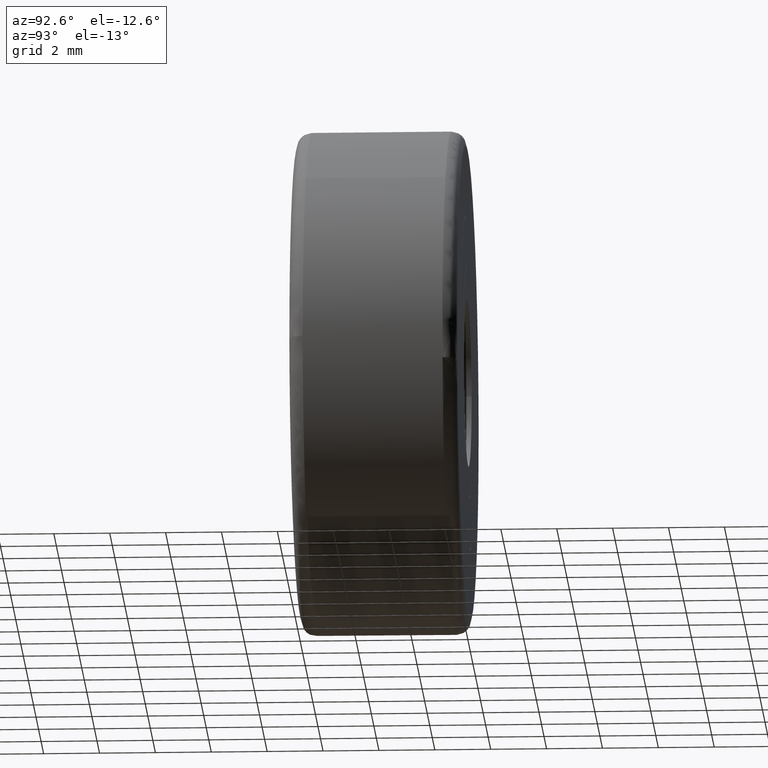
[diagram: clean part render]
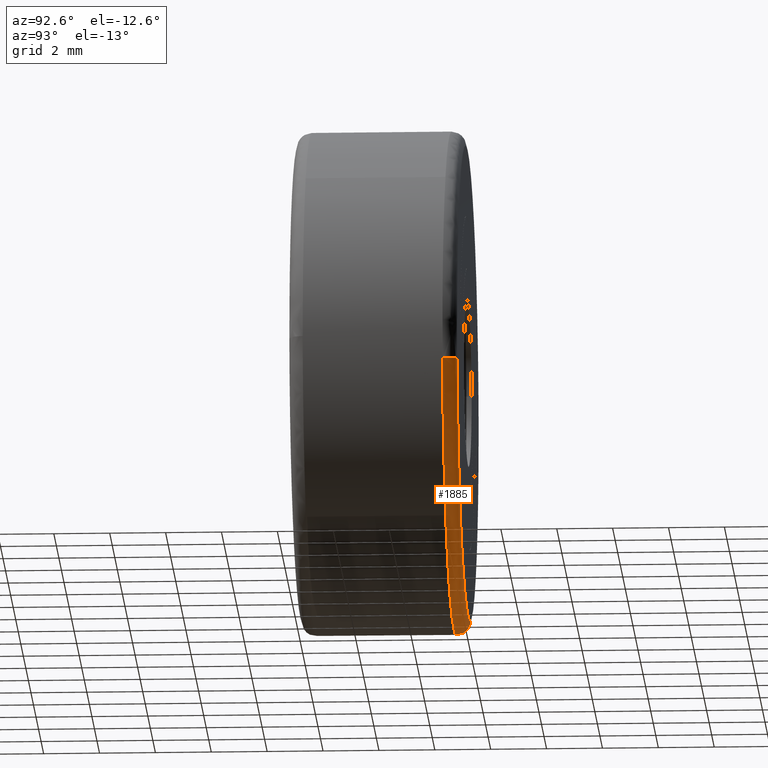
[diagram: same view with one face highlighted and labeled with its STEP entity id]
A machine part, auxiliary view. The second image highlights one B-rep face of the part: STEP entity #1885.
In plain terms, the highlighted face is a freeform B-spline surface patch.
Its self-contained STEP definition (entity closure, byte-faithful):
#1202=CARTESIAN_POINT('',(-9.0,5.500000000060477,4.425539E-016));
#1203=VERTEX_POINT('',#1202);
#1217=CARTESIAN_POINT('',(0.0,5.500000000000000,-9.0));
#1218=VERTEX_POINT('',#1217);
#1219=CARTESIAN_POINT('',(-9.0,5.500000000060477,4.425539E-016));
#1220=CARTESIAN_POINT('',(-9.0,5.500000000000000,-9.0));
#1221=CARTESIAN_POINT('',(0.0,5.500000000000000,-9.0));
#1229=(BOUNDED_CURVE()B_SPLINE_CURVE(2,(#1219,#1220,#1221),.UNSPECIFIED.,.F.,.U.)B_SPLINE_CURVE_WITH_KNOTS((3,3),(0.750000000000000,1.0),.UNSPECIFIED.)CURVE()GEOMETRIC_REPRESENTATION_ITEM()RATIONAL_B_SPLINE_CURVE((1.0,0.707106781186547,1.0))REPRESENTATION_ITEM(''));
#1230=EDGE_CURVE('',#1203,#1218,#1229,.T.);
#1232=CARTESIAN_POINT('',(8.939804749065401,5.500000000061864,-1.039178063946548));
#1233=VERTEX_POINT('',#1232);
#1234=CARTESIAN_POINT('',(0.0,5.500000000000000,-9.0));
#1235=CARTESIAN_POINT('',(8.014425307437291,5.500000000000000,-9.0));
#1236=CARTESIAN_POINT('',(8.939804749065401,5.500000000061864,-1.039178063946548));
#1244=(BOUNDED_CURVE()B_SPLINE_CURVE(2,(#1234,#1235,#1236),.UNSPECIFIED.,.F.,.U.)B_SPLINE_CURVE_WITH_KNOTS((3,3),(0.0,0.229999999999891),.UNSPECIFIED.)CURVE()GEOMETRIC_REPRESENTATION_ITEM()RATIONAL_B_SPLINE_CURVE((1.0,0.730538238691752,0.956886118190445))REPRESENTATION_ITEM(''));
#1245=EDGE_CURVE('',#1218,#1233,#1244,.T.);
#1763=CARTESIAN_POINT('',(8.443148930439094,6.0,-0.981445949391750));
#1764=VERTEX_POINT('',#1763);
#1765=CARTESIAN_POINT('',(8.443148930439094,6.0,-0.981445949391750));
#1766=CARTESIAN_POINT('',(8.939804748942835,5.999999998452672,-1.039178063929380));
#1767=CARTESIAN_POINT('',(8.939804749065401,5.500000000061864,-1.039178063946548));
#1775=(BOUNDED_CURVE()B_SPLINE_CURVE(2,(#1765,#1766,#1767),.UNSPECIFIED.,.F.,.U.)B_SPLINE_CURVE_WITH_KNOTS((3,3),(-1.736413117869313,-0.276558718270009),.UNSPECIFIED.)CURVE()GEOMETRIC_REPRESENTATION_ITEM()RATIONAL_B_SPLINE_CURVE((0.850203275200330,0.599621899798078,0.845789311811561))REPRESENTATION_ITEM(''));
#1776=EDGE_CURVE('',#1764,#1233,#1775,.T.);
#1795=CARTESIAN_POINT('',(-8.500000000038826,6.0,4.426226E-016));
#1796=VERTEX_POINT('',#1795);
#1810=CARTESIAN_POINT('',(-8.500000000038826,6.000000000000001,4.426226E-016));
#1811=CARTESIAN_POINT('',(-8.999999999879044,5.999999999922346,8.742504E-016));
#1812=CARTESIAN_POINT('',(-9.0,5.500000000060478,4.425539E-016));
#1820=(BOUNDED_CURVE()B_SPLINE_CURVE(2,(#1810,#1811,#1812),.UNSPECIFIED.,.F.,.U.)B_SPLINE_CURVE_WITH_KNOTS((3,3),(-1.736413120911434,-0.276558718264298),.UNSPECIFIED.)CURVE()GEOMETRIC_REPRESENTATION_ITEM()RATIONAL_B_SPLINE_CURVE((0.888510409004884,0.626638727310543,0.883897567050882))REPRESENTATION_ITEM(''));
#1821=EDGE_CURVE('',#1796,#1203,#1820,.T.);
#1828=CARTESIAN_POINT('',(-8.465324419697662,5.998796154887643,5.183345E-016));
#1829=CARTESIAN_POINT('',(-8.465324419697661,5.998796154887642,-8.465324419697659));
#1830=CARTESIAN_POINT('',(-1.036669E-015,5.998796154887643,-8.465324419697662));
#1831=CARTESIAN_POINT('',(7.538301140548427,5.998796154887641,-8.465324419697661));
#1832=CARTESIAN_POINT('',(8.408705272177256,5.998796154887643,-0.977442160124051));
#1833=CARTESIAN_POINT('',(-9.038869675953196,6.038668183561947,5.534529E-016));
#1834=CARTESIAN_POINT('',(-9.038869675953196,6.038668183561945,-9.038869675953194));
#1835=CARTESIAN_POINT('',(-1.106906E-015,6.038668183561947,-9.038869675953196));
#1836=CARTESIAN_POINT('',(8.049038431292644,6.038668183561946,-9.038869675953196));
#1837=CARTESIAN_POINT('',(8.978414450585850,6.038668183561947,-1.043666121121796));
#1838=CARTESIAN_POINT('',(-8.998783151801399,5.465137879022370,5.509984E-016));
#1839=CARTESIAN_POINT('',(-8.998783151801403,5.465137879022372,-8.998783151801403));
#1840=CARTESIAN_POINT('',(-1.101997E-015,5.465137879022370,-8.998783151801399));
#1841=CARTESIAN_POINT('',(8.013341714220472,5.465137879022373,-8.998783151801403));
#1842=CARTESIAN_POINT('',(8.938596039587436,5.465137879022373,-1.039037561504208));
#1850=(BOUNDED_SURFACE()B_SPLINE_SURFACE(2,2,((#1828,#1833,#1838),(#1829,#1834,#1839),(#1830,#1835,#1840),(#1831,#1836,#1841),(#1832,#1837,#1842)),.UNSPECIFIED.,.F.,.F.,.U.)B_SPLINE_SURFACE_WITH_KNOTS((3,2,3),(3,3),(0.0,14.909672105322590,28.626570442219361),(0.0,0.911185552149594),.UNSPECIFIED.)GEOMETRIC_REPRESENTATION_ITEM()RATIONAL_B_SPLINE_SURFACE(((0.915966868665182,0.599412800379155,0.910892965077561),(0.647686384175358,0.423848855878119,0.644098592541464),(0.915966868665182,0.599412800379155,0.910892965077561),(0.669148822934544,0.437893971438202,0.665442142344352),(0.876475981348280,0.573569787748603,0.871620833440247)))REPRESENTATION_ITEM('')SURFACE());
#1851=ORIENTED_EDGE('',*,*,#1245,.F.);
#1852=ORIENTED_EDGE('',*,*,#1230,.F.);
#1853=ORIENTED_EDGE('',*,*,#1821,.F.);
#1854=CARTESIAN_POINT('',(0.0,6.0,-8.500000000000000));
#1855=VERTEX_POINT('',#1854);
#1856=CARTESIAN_POINT('',(-8.500000000038826,6.0,4.426226E-016));
#1857=CARTESIAN_POINT('',(-8.500000000000002,6.0,-8.500000000000002));
#1858=CARTESIAN_POINT('',(0.0,6.0,-8.500000000000000));
#1866=(BOUNDED_CURVE()B_SPLINE_CURVE(2,(#1856,#1857,#1858),.UNSPECIFIED.,.F.,.U.)B_SPLINE_CURVE_WITH_KNOTS((3,3),(0.750000000000000,1.0),.UNSPECIFIED.)CURVE()GEOMETRIC_REPRESENTATION_ITEM()RATIONAL_B_SPLINE_CURVE((1.0,0.707106781186548,1.0))REPRESENTATION_ITEM(''));
#1867=EDGE_CURVE('',#1796,#1855,#1866,.T.);
#1868=ORIENTED_EDGE('',*,*,#1867,.T.);
#1869=CARTESIAN_POINT('',(0.0,6.0,-8.500000000000000));
#1870=CARTESIAN_POINT('',(7.569179456988788,6.000000000000001,-8.500000000000000));
#1871=CARTESIAN_POINT('',(8.443148930439094,5.999999999999999,-0.981445949391750));
#1879=(BOUNDED_CURVE()B_SPLINE_CURVE(2,(#1869,#1870,#1871),.UNSPECIFIED.,.F.,.U.)B_SPLINE_CURVE_WITH_KNOTS((3,3),(0.0,0.229999999999107),.UNSPECIFIED.)CURVE()GEOMETRIC_REPRESENTATION_ITEM()RATIONAL_B_SPLINE_CURVE((1.0,0.730538238692670,0.956886118188902))REPRESENTATION_ITEM(''));
#1880=EDGE_CURVE('',#1855,#1764,#1879,.T.);
#1881=ORIENTED_EDGE('',*,*,#1880,.T.);
#1882=ORIENTED_EDGE('',*,*,#1776,.T.);
#1883=EDGE_LOOP('',(#1851,#1852,#1853,#1868,#1881,#1882));
#1884=FACE_OUTER_BOUND('',#1883,.T.);
#1885=ADVANCED_FACE('',(#1884),#1850,.T.);